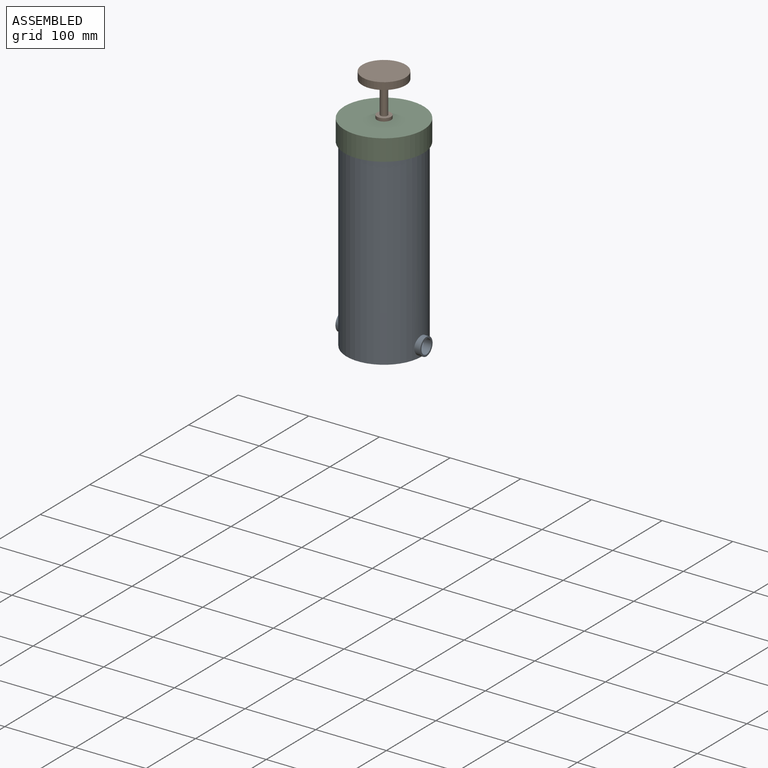
[diagram: assembled view]
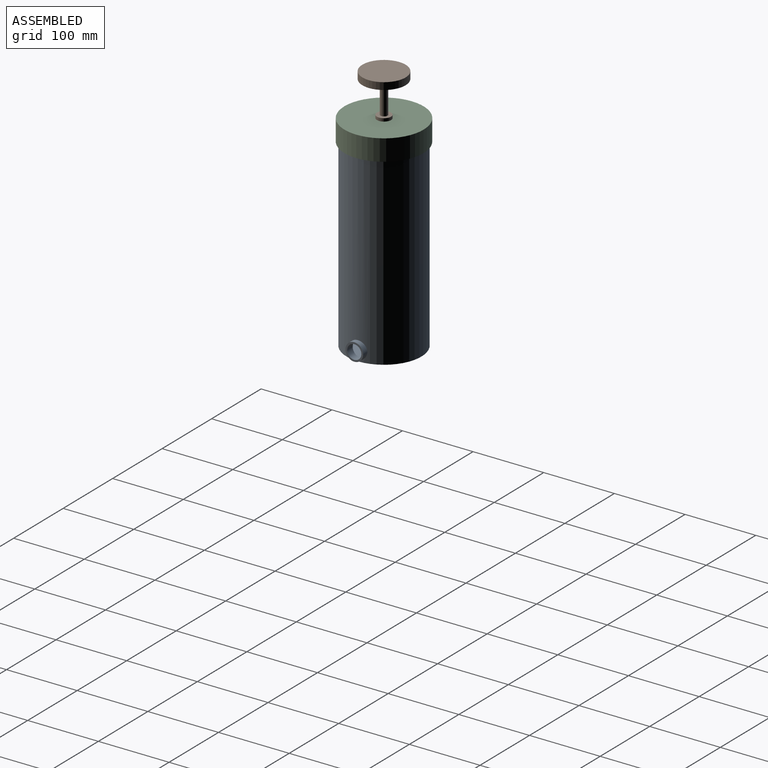
[diagram: assembled view, second angle]
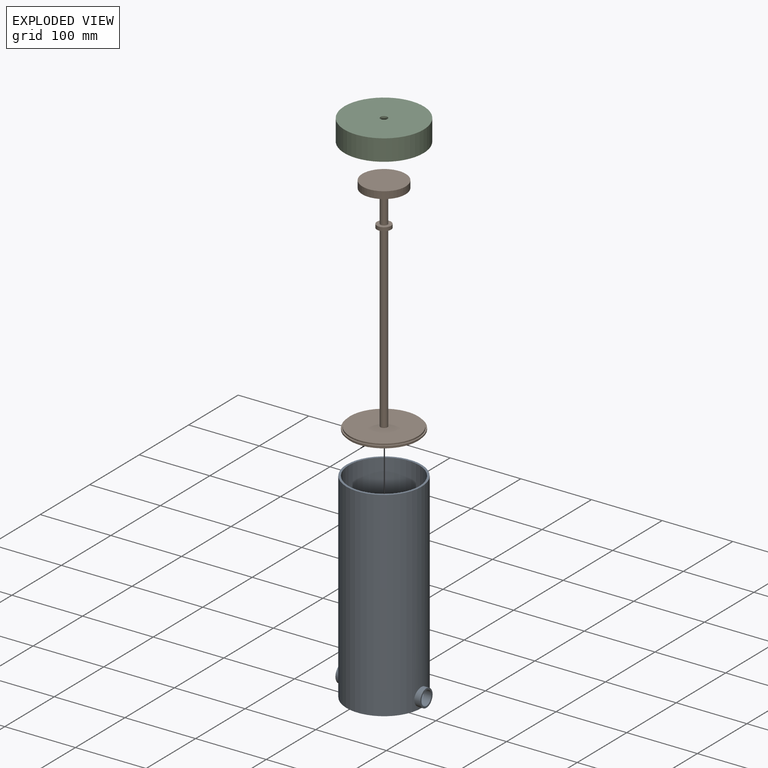
[diagram: exploded view]
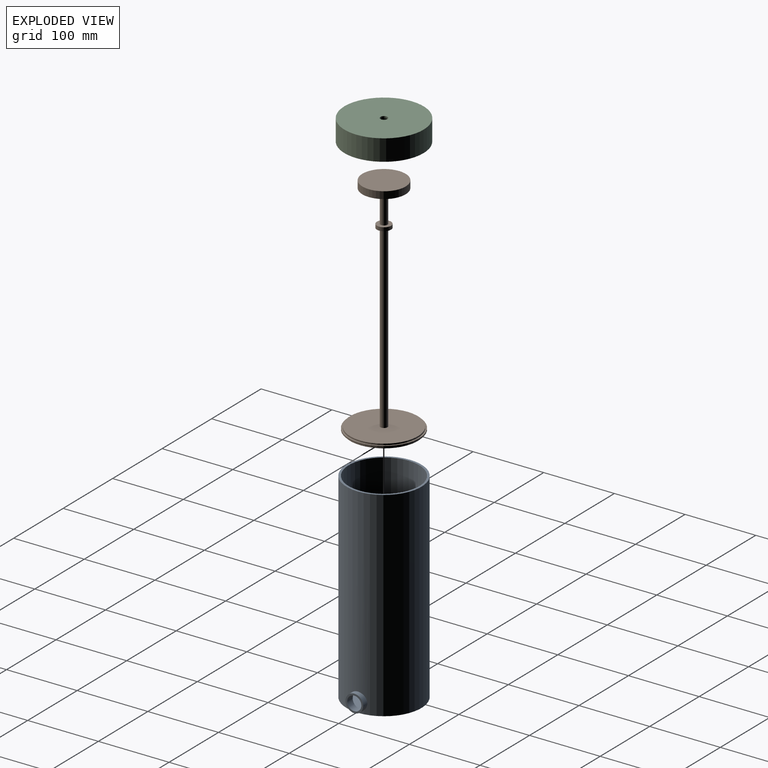
[diagram: exploded view, second angle]
ASSEMBLY  parts=3 mates=2
PART A: 11 faces, bbox 120x106x283 mm
  f0: cylinder r=53mm len=283mm, axis (0,0,1), area 93254.2mm2, adj f1,f2,f7,f9
  f1: plane 106x106mm, normal (0,0,1), area 970.8mm2, adj f0,f4
  f2: plane 106x106mm, normal (0,0,-1), area 8824.7mm2, adj f0
  f3: plane 100x100mm, normal (0,0,1), area 7854mm2, adj f4
  f4: cylinder r=50mm len=280mm, axis (0,0,1), area 87332mm2, adj f1,f3,f5,f6
  f5: cylinder r=10mm len=20mm, axis (1,0,0), area 659.9mm2, adj f4,f10
  f6: cylinder r=10mm len=20mm, axis (1,0,0), area 660mm2, adj f4,f8
  f7: cylinder r=12.5mm len=25mm, axis (-1,0,0), area 608.3mm2, adj f0,f8
  f8: plane 25x25mm, normal (1,0,0), area 176.7mm2, adj f6,f7
  f9: cylinder r=12.5mm len=25mm, axis (1,0,0), area 608.4mm2, adj f0,f10
  f10: plane 25x25mm, normal (-1,0,0), area 176.7mm2, adj f5,f9
PART B: 19 faces, bbox 100x100x327 mm
  f0: plane 20x20mm, normal (0,0,-1), area 235.6mm2, adj f1,f18
  f1: cylinder r=5mm len=254mm, axis (0,0,1), area 7979.6mm2, adj f0,f2
  f2: plane 96x96mm, normal (0,0,1), area 7159.7mm2, adj f1,f3
  f3: cylinder r=48mm len=96mm, axis (0,0,1), area 603.2mm2, adj f2,f4
  f4: plane 100x100mm, normal (0,0,1), area 615.8mm2, adj f3,f5
  f5: cylinder r=50mm len=100mm, axis (0,0,1), area 628.3mm2, adj f4,f6
  f6: plane 100x100mm, normal (0,0,-1), area 615.8mm2, adj f5,f7
  f7: cylinder r=48mm len=96mm, axis (0,0,1), area 603.2mm2, adj f6,f8
  f8: plane 96x96mm, normal (0,0,-1), area 7037.2mm2, adj f7,f9
  f9: cylinder r=8mm len=16mm, axis (0,0,1), area 201.3mm2, adj f8,f10
  f10: plane 16x16mm, normal (0,0,-1), area 122.5mm2, adj f9,f11
  f11: cylinder r=5mm len=10mm, axis (0,0,1), area 71.1mm2, adj f10,f12
  f12: plane 10x10mm, normal (0,0,-1), area 78.5mm2, adj f11
  f13: plane 61.18x61.18mm, normal (0,0,1), area 2940.1mm2, adj f14
  f14: cylinder r=30.59mm len=61.18mm, axis (0,0,1), area 1922.1mm2, adj f13,f15
  f15: plane 61.18x61.18mm, normal (0,0,-1), area 2861.5mm2, adj f14,f16
  f16: cylinder r=5mm len=45.69mm, axis (0,0,1), area 1435.5mm2, adj f15,f17
  f17: plane 20x20mm, normal (0,0,1), area 235.6mm2, adj f16,f18
  f18: cylinder r=10mm len=20mm, axis (0,0,1), area 314.2mm2, adj f0,f17
PART C: 8 faces, bbox 112x112x30 mm
  f0: cylinder r=5mm len=10mm, axis (0,0,1), area 94.2mm2, adj f1,f7
  f1: plane 112x112mm, normal (0,0,1), area 9773.5mm2, adj f0,f2
  f2: cylinder r=56mm len=112mm, axis (0,0,1), area 10555.8mm2, adj f1,f3
  f3: plane 112x112mm, normal (0,0,-1), area 1027.3mm2, adj f2,f4
  f4: cylinder r=53mm len=106mm, axis (0,0,1), area 7326.2mm2, adj f3,f5
  f5: plane 106x106mm, normal (0,0,-1), area 6861.2mm2, adj f4,f6
  f6: cylinder r=25mm len=50mm, axis (0,0,1), area 785.4mm2, adj f5,f7
  f7: plane 50x50mm, normal (0,0,-1), area 1885mm2, adj f0,f6
PLACE A t=(-379.41,-91.42,-308.61)mm fixed
PLACE B t=(-379.41,-91.42,-324.76)mm
PLACE C t=(-379.41,-91.42,-340.68)mm
MATE fastened C.f0 <-> A.f0  axis (0,0,-1) through (-379.41,-91.42,-40.22)mm
MATE slider B.f1 <-> C.f0  axis (0,0,1) through (-379.41,-91.42,-159.94)mm
